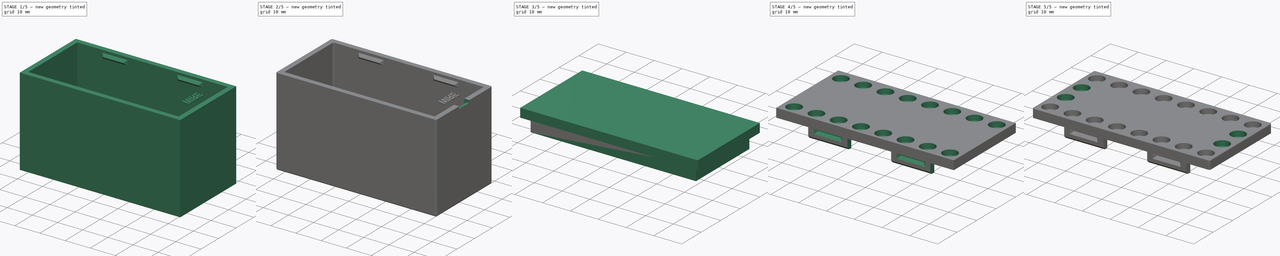
[diagram: build sequence overview — one tinted view per stage of 5, left to right]
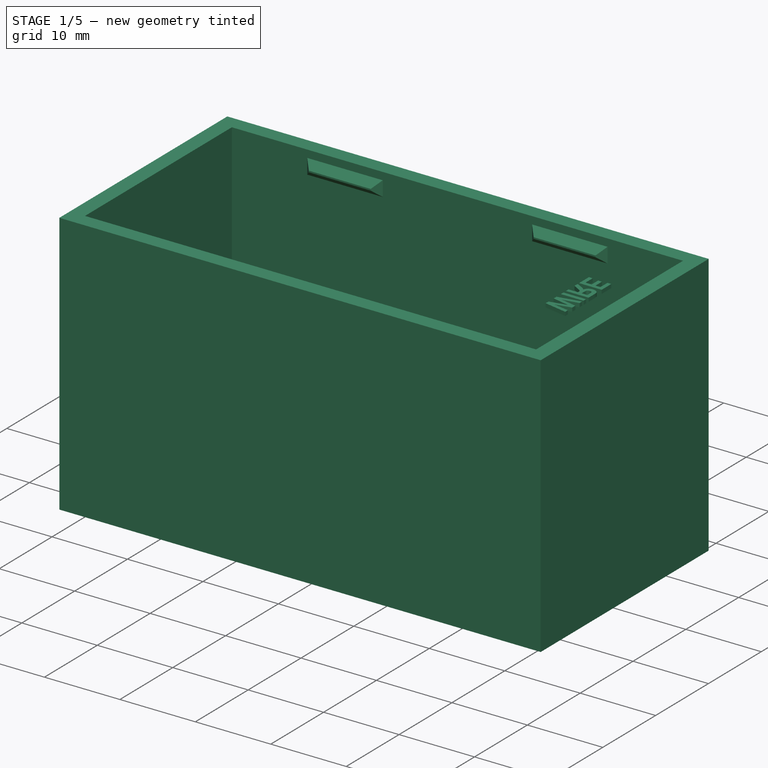
[diagram: stage 1 of 5 — iso view after this stage's code; geometry added in this stage tinted green]
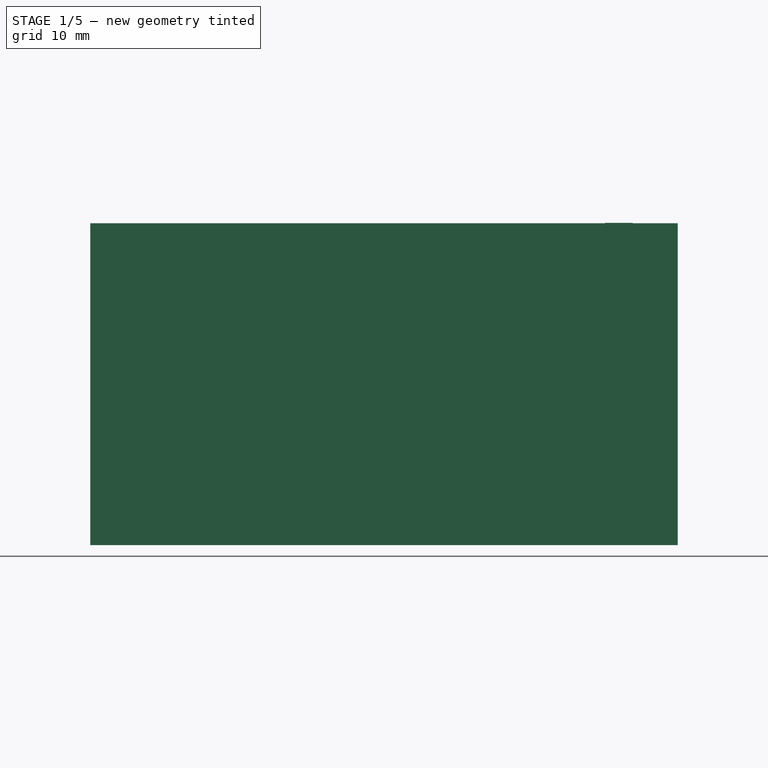
[diagram: stage 1 of 5 — front view after this stage's code; geometry added in this stage tinted green]
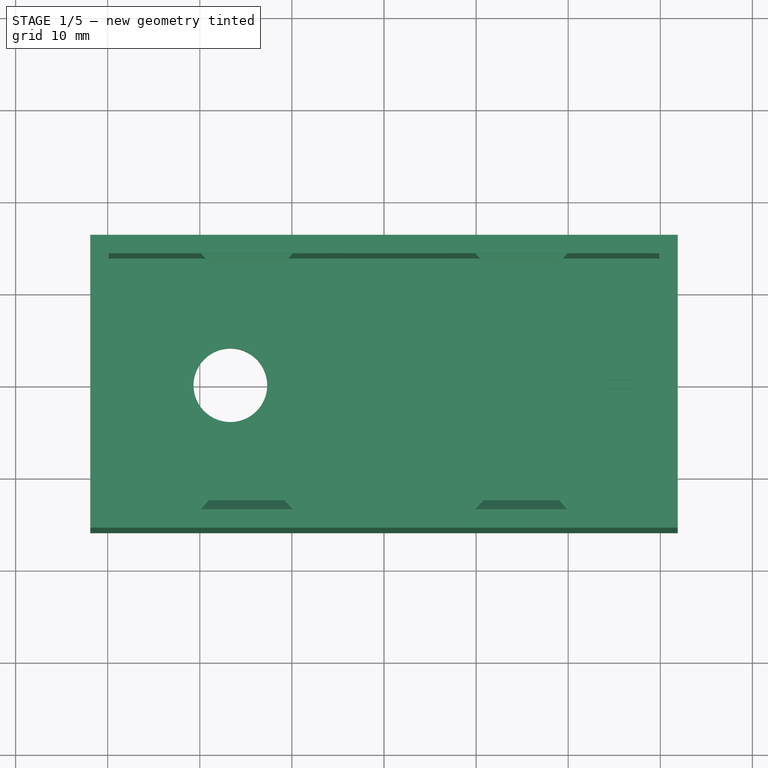
[diagram: stage 1 of 5 — top view after this stage's code; geometry added in this stage tinted green]
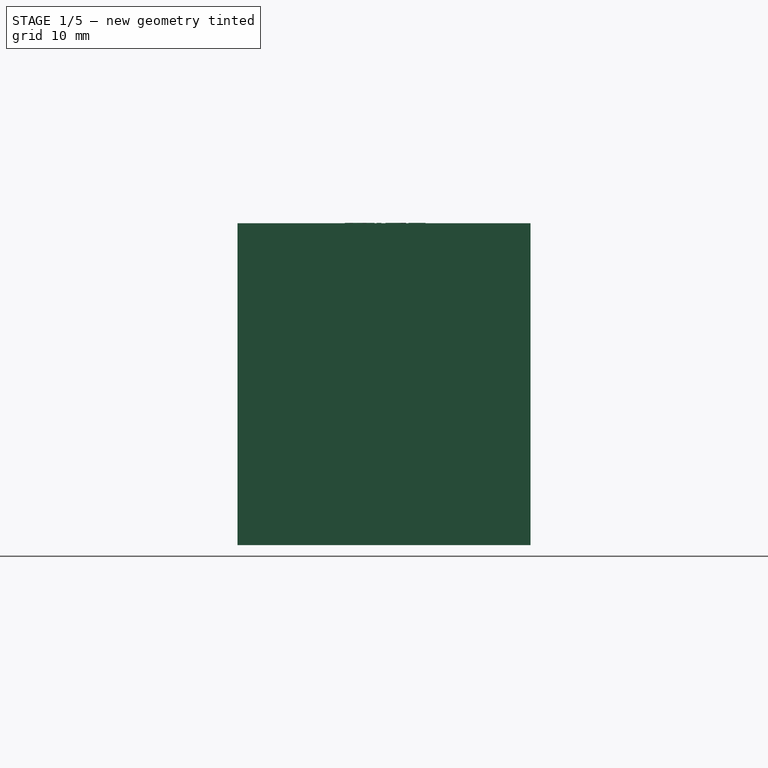
[diagram: stage 1 of 5 — right view after this stage's code; geometry added in this stage tinted green]
FCSTD DOCUMENT  (FreeCAD 1.0R39109 (Git))
Label: Enclosure for Lego PF PWM Motor control
License: All rights reserved
LicenseURL: https://en.wikipedia.org/wiki/All_rights_reserved
objects: Sketcher::SketchObject×13, Part::Feature×12, PartDesign::Pocket×8, PartDesign::Mirrored×7, PartDesign::Chamfer×6, PartDesign::Pad×4, PartDesign::SubShapeBinder×4, PartDesign::MultiTransform×4, PartDesign::Hole×2, PartDesign::LinearPattern×2, App::Part×2, PartDesign::Fillet×2, PartDesign::Body×2, Spreadsheet::Sheet×1, PartDesign::Thickness×1, Part::Scale×1, PartDesign::PolarPattern×1, Part::Part2DObjectPython×1, Part::Extrusion×1, Part::MultiFuse×1, +1 more types
note: 145 computed .brp shape members not serialized (recipe doc carries the construction recipe); baked Part::Feature solids carry a one-line shape summary decoded from their .brp

FEATURE [Spreadsheet::Sheet] Spreadsheet
  cells = A1='Basic Case; C1='Mounting Corners; E1='Flange; G1='LegoAdapter; A2='width; B2(width)==widthLegoAdapter; C2='standoff_height; D2(standoff_height)=6; E2='flange_length; F2(flange_length)=10; A3='length; B3(length)==lengthLegoAdapter; C3='standoff_outer_radius; D3(standoff_outer_radius)=3.5; E3='flange_thickness; F3(flange_thickness)=3; G3='lenghtUnits; H3(lenghtUnits)=8; A4='heightTotal; B4(heightTotal)==heightLegoAdapter; C4='offset_from_wall; D4(offset_from_wall)=4; G4='widthUnits; H4(widthUnits)=4; A5='wallCase; B5(wallCase)=2; C5='hole_diameter; D5(hole_diameter)=2.8; G5='heightUnits; H5(heightUnits)=12; A6='wallLid; B6(wallLid)==verticalSpacing; C6='Hole Spacing X; D6==length - 2 * wallCase - 2 * offset_from_wall; A7='gap; B7(gap)=0.2; C7='Hole Spacing Y; D7==width - 2 * wallCase - 2 * offset_from_wall; G7='lengthLegoAdapter; H7(lengthLegoAdapter)==lenghtUnits * horizontalSpacing - lenghtAdjustment; I7='calculated; A8='outsideFillet; B8=0.6; G8='widthLegoAdapter; H8(widthLegoAdapter)==widthUnits * horizontalSpacing - lenghtAdjustment; I8='calculated; A9='tolerance; B9(tolerance)=0.05; G9='heightLegoAdapter; H9(heightLegoAdapter)==heightUnits * verticalSpacing - lenghtAdjustment; I9='calculated; A10='snapfitToothLenght; B10(snapfitToothLenght)=10; G10='studPlacement; H10(studPlacement)=3.8; A11='snapfitToothHeight; B11(snapfitToothHeight)=2; G11='studDiameter; H11(studDiameter)=4.8; A12='SnapfitToothDepth; B12(SnapfitToothDepth)=1; G12='studHeight; H12(studHeight)=1.8; A13='chamferEdges; B13(chamferEdges)=0.2; G13='horizontalSpacing; H13(horizontalSpacing)=8; G14='verticalSpacing; H14(verticalSpacing)=3.2; A15='heightCase; B15(heightCase)==heightTotal - wallLid - tolerance; G15='lenghtAdjustment; H15(lenghtAdjustment)=0.2; A17='check smallest fillet (must be positive); B17==B8 - gap - wallCase - wallCase; G17='ClearanceLego; H17(ClearanceLego)=0.3; I17='for printing; G18='cornerFillet; H18(cornerFillet)=0.6; I18='for printing
FEATURE [Sketcher::SketchObject] Sketch  label="Sketch_case"
  ArcFitTolerance = 1e-06
  AttachmentSupport = -> [XY_Plane]
  FullyConstrained = true
  MakeInternals = false
  MapMode = 5
  expr: Constraints[27] = Spreadsheet.B8
  expr: Constraints[6] = Spreadsheet.length
  expr: Constraints[7] = Spreadsheet.width
  sketch-geometry (18):
    g0: LineSegment [constr] StartX=-31.9 StartY=15.3 StartZ=0 EndX=-31.9 EndY=-15.3 EndZ=0
    g1: LineSegment [constr] StartX=-31.3 StartY=-15.9 StartZ=0 EndX=31.3 EndY=-15.9 EndZ=0
    g2: LineSegment [constr] StartX=31.9 StartY=-15.3 StartZ=0 EndX=31.9 EndY=15.3 EndZ=0
    g3: LineSegment [constr] StartX=31.3 StartY=15.9 StartZ=0 EndX=-31.3 EndY=15.9 EndZ=0
    g4: GeomPoint [constr] X=0 Y=0 Z=0
    g5: ArcOfCircle [constr] CenterX=-31.3 CenterY=15.3 CenterZ=0 NormalX=0 NormalY=0 NormalZ=1 AngleXU=0 Radius=0.6 StartAngle=1.5708 EndAngle=3.14159
    g6: GeomPoint [constr] X=-31.9 Y=15.9 Z=0
    g7: ArcOfCircle [constr] CenterX=-31.3 CenterY=-15.3 CenterZ=0 NormalX=0 NormalY=0 NormalZ=1 AngleXU=0 Radius=0.6 StartAngle=3.14159 EndAngle=4.71239
    g8: GeomPoint [constr] X=-31.9 Y=-15.9 Z=0
    g9: ArcOfCircle [constr] CenterX=31.3 CenterY=-15.3 CenterZ=0 NormalX=0 NormalY=0 NormalZ=1 AngleXU=0 Radius=0.6 StartAngle=4.71239 EndAngle=6.28319
    g10: GeomPoint [constr] X=31.9 Y=-15.9 Z=0
    g11: ArcOfCircle [constr] CenterX=31.3 CenterY=15.3 CenterZ=0 NormalX=0 NormalY=0 NormalZ=1 AngleXU=0 Radius=0.6 StartAngle=8e-16 EndAngle=1.5708
    g12: GeomPoint [constr] X=31.9 Y=15.9 Z=0
    g13: LineSegment StartX=-31.9 StartY=15.9 StartZ=0 EndX=-31.9 EndY=-15.9 EndZ=0
    g14: LineSegment StartX=-31.9 StartY=-15.9 StartZ=0 EndX=31.9 EndY=-15.9 EndZ=0
    g15: LineSegment StartX=31.9 StartY=-15.9 StartZ=0 EndX=31.9 EndY=15.9 EndZ=0
    g16: LineSegment StartX=31.9 StartY=15.9 StartZ=0 EndX=-31.9 EndY=15.9 EndZ=0
    g17: GeomPoint [constr] X=0 Y=0 Z=0
  constraints (38):
    c: Vertical(g0)
    c: Vertical(g2)
    c: Horizontal(g1)
    c: Horizontal(g3)
    c: Symmetric(g10,g6,g4)
    c: Coincident(g4,g-1)
    c: DistanceX(g6,g12) = 63.8
    c: DistanceY(g8,g6) = 31.8
    c: PointOnObject(g6,g0)
    c: PointOnObject(g6,g3)
    c: Tangent(g0,g5) = -1.5708
    c: Tangent(g3,g5) = -1.5708
    c: PointOnObject(g8,g0)
    c: PointOnObject(g8,g1)
    c: Tangent(g0,g7) = -1.5708
    c: Tangent(g1,g7) = -1.5708
    c: PointOnObject(g10,g2)
    c: PointOnObject(g10,g1)
    c: Tangent(g2,g9) = -1.5708
    c: Tangent(g1,g9) = -1.5708
    c: PointOnObject(g12,g3)
    c: PointOnObject(g12,g2)
    c: Tangent(g3,g11) = -1.5708
    c: Tangent(g2,g11) = -1.5708
    c: Equal(g11,g5)
    c: Equal(g5,g9)
    c: Equal(g9,g7)
    c: Radius(g5) = 0.6
    c: Coincident(g13,g14)
    c: Coincident(g14,g15)
    c: Coincident(g15,g16)
    c: Coincident(g16,g13)
    c: Vertical(g15)
    c: Horizontal(g14)
    c: Symmetric(g15,g13,g17)
    c: Coincident(g17,g4)
    c: Tangent(g16,g3)
    c: Tangent(g0,g13)
FEATURE [PartDesign::Pad] Pad  label="Pad_case"
  Direction = (0,0,1)
  Length = 34.95
  Length2 = 10
  Profile = -> Sketch
  ReferenceAxis = -> Sketch [N_Axis]
  Refine = true
  Suppressed = false
  Type = 0
  expr: Length = Spreadsheet.heightCase
FEATURE [PartDesign::Thickness] Thickness  label="Thickness_case"
  Base = -> Pad [Face6]
  BaseFeature = -> Pad
  Intersection = false
  Join = 0
  Mode = 0
  Refine = true
  Reversed = true
  SupportTransform = false
  Suppressed = false
  Value = 2
  expr: Value = Spreadsheet.wallCase
FEATURE [Sketcher::SketchObject] Sketch002  label="Sketch_snapfitTooth1"
  ArcFitTolerance = 1e-06
  AttachmentSupport = -> [Thickness]
  ExternalGeometry = -> [Thickness]
  FullyConstrained = true
  MakeInternals = false
  MapMode = 5
  Placement = pos=(-4e-16,13.9,0) rot=(1,0,0;1.5708rad)
  expr: Constraints[10] = Spreadsheet.snapfitToothHeight
  expr: Constraints[9] = Spreadsheet.snapfitToothLenght
  sketch-geometry (5):
    g0: LineSegment StartX=-19.9 StartY=33.95 StartZ=0 EndX=-19.9 EndY=31.95 EndZ=0
    g1: LineSegment StartX=-19.9 StartY=31.95 StartZ=0 EndX=-9.9 EndY=31.95 EndZ=0
    g2: LineSegment StartX=-9.9 StartY=31.95 StartZ=0 EndX=-9.9 EndY=33.95 EndZ=0
    g3: LineSegment StartX=-9.9 StartY=33.95 StartZ=0 EndX=-19.9 EndY=33.95 EndZ=0
    g4: GeomPoint [constr] X=-14.9 Y=32.95 Z=0
  constraints (13):
    c: Coincident(g0,g1)
    c: Coincident(g1,g2)
    c: Coincident(g2,g3)
    c: Coincident(g3,g0)
    c: Vertical(g0)
    c: Vertical(g2)
    c: Horizontal(g1)
    c: Horizontal(g3)
    c: Symmetric(g2,g0,g4)
    c: DistanceX(g3,g3) = 10
    c: DistanceY(g0,g0) = 2
    c: DistanceX(g-4,g0) = 10
    c: DistanceY(g0,g-4) = 1
FEATURE [PartDesign::Pad] Pad003  label="Pad_snapfitTooth1"
  BaseFeature = -> Thickness
  Direction = (0,-1,2e-16)
  Length = 1
  Length2 = 10
  Profile = -> Sketch002
  ReferenceAxis = -> Sketch002 [N_Axis]
  Refine = true
  Suppressed = false
  TaperAngle = -42
  Type = 0
  expr: Length = Spreadsheet.SnapfitToothDepth
FEATURE [PartDesign::Mirrored] Mirrored
  MirrorPlane = -> YZ_Plane
  Refine = true
  Suppressed = false
  TransformMode = 0
FEATURE [PartDesign::Mirrored] Mirrored001
  MirrorPlane = -> XZ_Plane
  Refine = true
  Suppressed = false
  TransformMode = 0
FEATURE [PartDesign::MultiTransform] MultiTransform  label="MultiTransform_snapfitTeeth"
  BaseFeature = -> Pad003
  Originals = -> [Pad003]
  Refine = true
  Suppressed = false
  TransformMode = 0
  Transformations = -> [Mirrored,Mirrored001]
FEATURE [Part::Feature] Part__Feature  label="Body"
  shape: bbox 26.5 x 31 x 2.5 mm, 65 faces (baked)
FEATURE [Part::Feature] Part__Feature001  label="POTENCIOMETRO_CAJA"
  shape: bbox 12.6 x 9.5 x 11.4 mm, 6 faces (baked)
FEATURE [Part::Feature] Part__Feature002  label="EJE"
  shape: bbox 15.5 x 6.6 x 6.6 mm, 3 faces (baked)
FEATURE [Part::Feature] Part__Feature003  label="potenciometro"
  Placement = pos=(0,0,9) rot=(0,0,1;0rad)
  shape: bbox 17.25 x 15.88 x 15.88 mm, 7 faces (baked)
FEATURE [Part::Feature] Part__Feature004  label="condensador"
  Placement = pos=(0,-10,-22) rot=(0,0,1;1.5708rad)
  shape: bbox 16 x 10.82 x 10.82 mm, 5 faces (baked)
FEATURE [Part::Feature] Part__Feature005  label="Body005"
  shape: bbox 7.7 x 21 x 10 mm, 53 faces (baked)
FEATURE [Part::Feature] Part__Feature006  label="PIN"
  Placement = pos=(-19.1,-8,3.3) rot=(0,0,1;3.14159rad)
  shape: bbox 5.892 x 0.67 x 9.613 mm, 10 faces (baked)
FEATURE [Part::Feature] Part__Feature007  label="PIN001"
  Placement = pos=(-19.1,-12.4,3.3) rot=(0,0,1;3.14159rad)
  shape: bbox 5.892 x 0.67 x 9.613 mm, 10 faces (baked)
FEATURE [App::Part] Grupo  label="PWM Speed Controller"
  Group = -> [Part__Feature,Part__Feature001,Part__Feature002,Part__Feature003,Part__Feature004,Part__Feature005,Part__Feature006,Part__Feature007]
  Origin = -> Origin002
  Placement = pos=(-13,-9,18.5) rot=(-0.58,0.58,0.58;2.0944rad)
FEATURE [Part::Feature] Part__Feature008  label="main-casing"
  shape: bbox 37 x 28 x 29 mm, 170 faces (baked)
FEATURE [Part::Feature] Part__Feature009  label="rocker-switch"
  Placement = pos=(-0.426771,0,-2.76173) rot=(0,-1,0;0.200713rad)
  shape: bbox 26.3 x 19.5 x 13.38 mm, 27 faces (baked)
FEATURE [Part::Feature] Part__Feature010  label="rocker-pivot"
  shape: bbox 3 x 22 x 3 mm, 3 faces (baked)
FEATURE [Part::Feature] Part__Feature011  label="connectors"
  shape: bbox 23 x 19.9 x 15 mm, 82 faces (baked)
FEATURE [App::Part] Rocker_Switch_v27  label="Rocker Switch v27"
  Group = -> [Part__Feature008,Part__Feature009,Part__Feature010,Part__Feature011]
  Origin = -> Origin003
FEATURE [Part::Scale] Scale  label="Scale_switch"
  Base = -> Rocker_Switch_v27
  Placement = pos=(25,-10.5,-2) rot=(0,1,0;3.14159rad)
  Uniform = false
  UniformScale = 1
  XScale = 0.94
  YScale = 0.96
  ZScale = 1
FEATURE [PartDesign::SubShapeBinder] Binder002  label="Binder_footprint_potAxis"
  BindCopyOnChange = 0
  BindMode = 0
  ClaimChildren = false
  Context = -> Body [Binder002.]
  Fuse = false
  MakeFace = true
  OffsetFill = false
  OffsetIntersection = false
  OffsetJoinType = 0
  OffsetOpenResult = false
  PartialLoad = false
  Refine = true
  Relative = true
  Support = -> [Grupo[Part__Feature002.Edge3]]
  _Version = 2
FEATURE [Sketcher::SketchObject] Sketch007  label="Sketch_holePotAxis"
  ArcFitTolerance = 1e-06
  AttachmentSupport = -> [MultiTransform]
  ExternalGeometry = -> [Binder002]
  FullyConstrained = true
  MakeInternals = false
  MapMode = 5
  Placement = pos=(0,0,0) rot=(1,0,0;3.14159rad)
  sketch-geometry (1):
    g0: Circle CenterX=-16.6834 CenterY=-0.143796 CenterZ=0 NormalX=0 NormalY=0 NormalZ=1 AngleXU=0 Radius=4
  constraints (2):
    c: Coincident(g0,g-3)
    c: Diameter(g0) = 8
FEATURE [PartDesign::Pocket] Pocket002  label="Pocket_holePotAxis"
  BaseFeature = -> MultiTransform
  Direction = (0,0,1)
  Length = 0
  Length2 = 5
  Profile = -> Sketch007
  ReferenceAxis = -> Sketch007 [N_Axis]
  Refine = true
  Suppressed = false
  Type = 3
  UpToFace = -> MultiTransform [Face11]
FEATURE [PartDesign::Body] Body  label="Body_case"
  AllowCompound = false
  Group = -> [Sketch,Pad,Thickness,Sketch002,Pad003,MultiTransform,Mirrored,Mirrored001,Binder002,Sketch007,Pocket002,Binder003,Sketch008,Pocket003,Fillet,Chamfer003,Chamfer002,Sketch009,Pocket004,Chamfer005,Sketch010,Pocket005,PolarPattern,Sketch011,Pocket006,Mirrored006,Sketch012,Pocket007]
  Origin = -> Origin
  Tip = -> Pocket007
FEATURE [Part::Part2DObjectPython] ShapeString  label="ShapeString_txtWire"  # Draft 2D object (typed FeaturePython)
  FontFile = <path>
  Fuse = false
  Justification = 6
  JustificationReference = 0
  KeepLeftMargin = false
  MakeFace = true
  ObliqueAngle = 0
  Placement = pos=(24,-4.26,35) rot=(0.707107,0.707107,0;3.14159rad)
  ScaleToSize = true
  Size = 3
  String = WIRE
  Tracking = 0
FEATURE [Part::Extrusion] Extrude  label="Extrude_txtWire"
  Base = -> ShapeString
  Dir = (0,0,-1)
  DirMode = 2
  FaceMakerClass = Part::FaceMakerBullseye
  FaceMakerMode = 3
  LengthFwd = 0.5
  LengthRev = 0
  Solid = false
  Symmetric = false
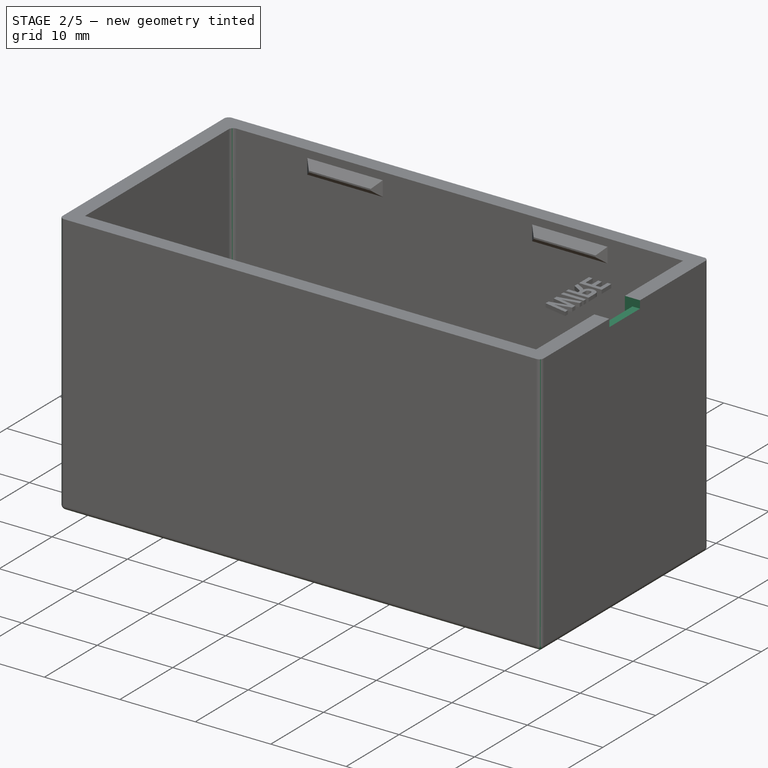
[diagram: stage 2 of 5 — iso view after this stage's code; geometry added in this stage tinted green]
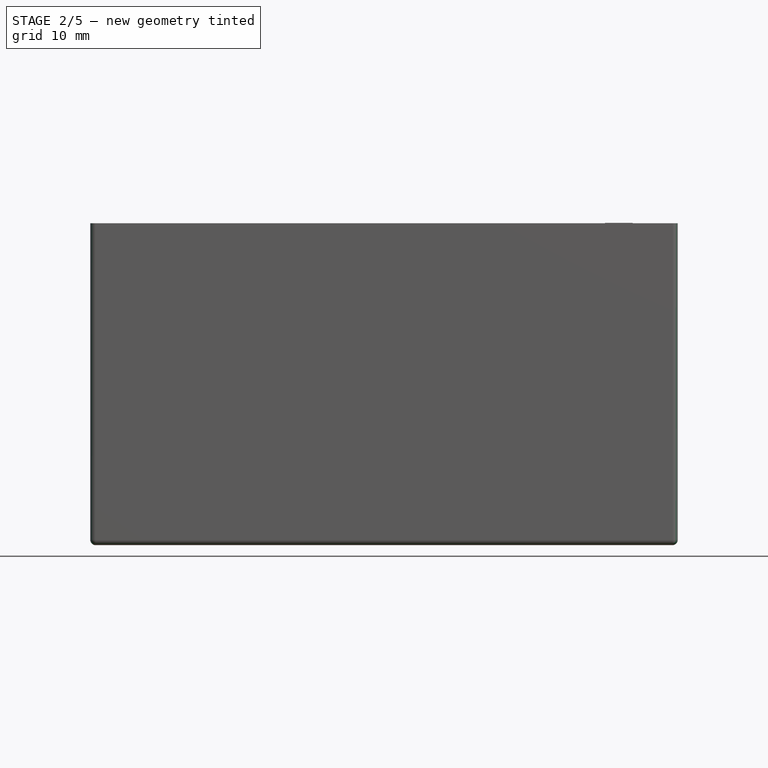
[diagram: stage 2 of 5 — front view after this stage's code; geometry added in this stage tinted green]
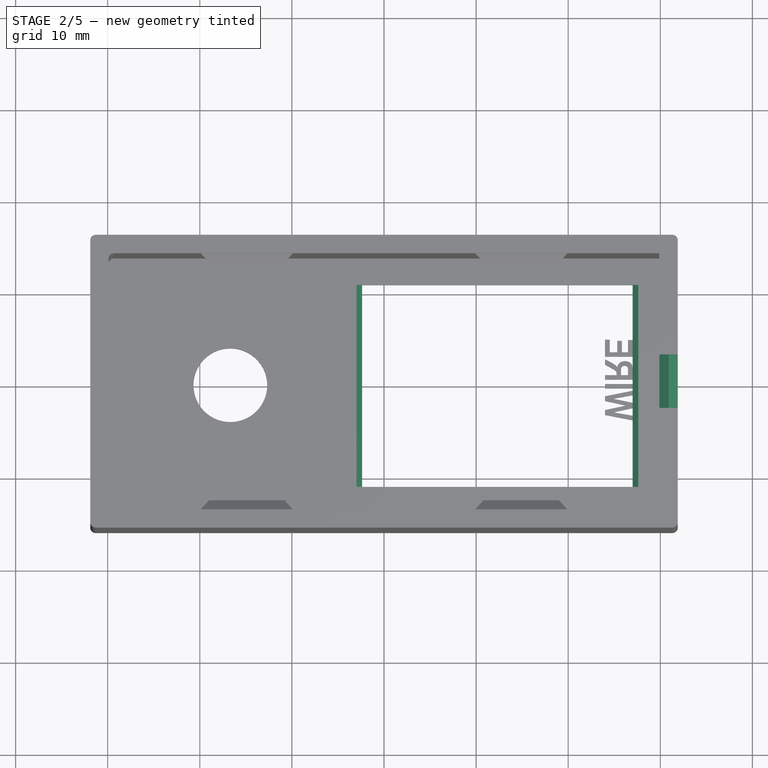
[diagram: stage 2 of 5 — top view after this stage's code; geometry added in this stage tinted green]
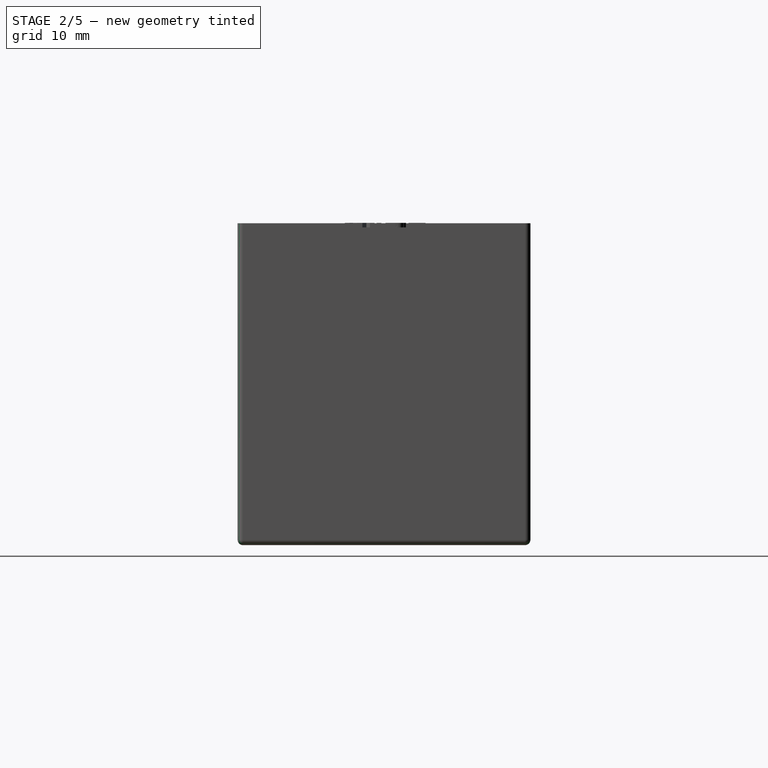
[diagram: stage 2 of 5 — right view after this stage's code; geometry added in this stage tinted green]
FEATURE [PartDesign::SubShapeBinder] Binder003  label="Binder_footprintSwitch"
  BindCopyOnChange = 0
  BindMode = 0
  ClaimChildren = false
  Context = -> Body [Binder003.]
  Fuse = false
  MakeFace = true
  OffsetFill = false
  OffsetIntersection = false
  OffsetJoinType = 0
  OffsetOpenResult = false
  PartialLoad = false
  Refine = true
  Relative = true
  Support = -> [Scale[Edge39,Edge40,Edge41,Edge42,Edge37,Edge38]]
  _Version = 2
FEATURE [Sketcher::SketchObject] Sketch008  label="Sketch_holeSwitch"
  ArcFitTolerance = 1e-06
  AttachmentSupport = -> [Pocket002]
  ExternalGeometry = -> [Binder003]
  FullyConstrained = true
  MakeInternals = false
  MapMode = 5
  Placement = pos=(0,0,0) rot=(1,0,0;3.14159rad)
  sketch-geometry (8):
    g0: LineSegment [constr] StartX=25 StartY=10.5 StartZ=0 EndX=-0.38 EndY=-10.62 EndZ=0
    g1: LineSegment [constr] StartX=-0.38 StartY=10.5 StartZ=0 EndX=25 EndY=-10.62 EndZ=0
    g2: GeomPoint [constr] X=12.31 Y=-0.06 Z=0
    g3: LineSegment StartX=-2.38 StartY=10.9 StartZ=0 EndX=-2.38 EndY=-11.02 EndZ=0
    g4: LineSegment StartX=-2.38 StartY=-11.02 StartZ=0 EndX=27 EndY=-11.02 EndZ=0
    g5: LineSegment StartX=27 StartY=-11.02 StartZ=0 EndX=27 EndY=10.9 EndZ=0
    g6: LineSegment StartX=27 StartY=10.9 StartZ=0 EndX=-2.38 EndY=10.9 EndZ=0
    g7: GeomPoint [constr] X=12.31 Y=-0.06 Z=0
  constraints (18):
    c: Coincident(g0,g-6)
    c: Coincident(g0,g-8)
    c: Coincident(g1,g-4)
    c: Coincident(g1,g-7)
    c: PointOnObject(g2,g0)
    c: PointOnObject(g2,g1)
    c: Coincident(g3,g4)
    c: Coincident(g4,g5)
    c: Coincident(g5,g6)
    c: Coincident(g6,g3)
    c: Vertical(g3)
    c: Vertical(g5)
    c: Horizontal(g4)
    c: Horizontal(g6)
    c: Symmetric(g5,g3,g7)
    c: Coincident(g7,g2)
    c: DistanceX(g3,g1) = 2
    c: DistanceY(g1,g3) = 0.4
FEATURE [PartDesign::Pocket] Pocket003  label="Pocket_holeSwitch"
  BaseFeature = -> Pocket002
  Direction = (0,0,1)
  Length = 0
  Length2 = 5
  Profile = -> Sketch008
  ReferenceAxis = -> Sketch008 [N_Axis]
  Refine = true
  Suppressed = false
  Type = 3
  UpToFace = -> Pocket002 [Face12]
FEATURE [PartDesign::Fillet] Fillet  label="Fillet_caseCorners"
  Base = -> Pocket003 [Edge9,Edge11,Edge6,Edge3,Edge34,Edge2,Edge8,Edge5,Edge1]
  BaseFeature = -> Pocket003
  Radius = 0.6
  Refine = true
  SupportTransform = false
  Suppressed = false
  UseAllEdges = false
  expr: Radius = Spreadsheet.cornerFillet
FEATURE [PartDesign::Chamfer] Chamfer003  label="Chamfer_caseSwitchEdge"
  Angle = 45
  Base = -> Fillet [Edge70,Edge68,Edge79,Edge81]
  BaseFeature = -> Fillet
  ChamferType = 0
  FlipDirection = false
  Refine = true
  Size = 0.6
  Size2 = 1
  SupportTransform = false
  Suppressed = false
  UseAllEdges = false
FEATURE [PartDesign::Chamfer] Chamfer002  label="Chamfer_caseHolesBottom"
  Angle = 45
  Base = -> Chamfer003 [Edge2,Edge7,Edge13]
  BaseFeature = -> Chamfer003
  ChamferType = 0
  FlipDirection = false
  Refine = true
  Size = 0.2
  Size2 = 1
  SupportTransform = false
  Suppressed = false
  UseAllEdges = false
  expr: Size = Spreadsheet.chamferEdges
FEATURE [Sketcher::SketchObject] Sketch009
  ArcFitTolerance = 1e-06
  AttachmentSupport = -> [Chamfer002]
  ExternalGeometry = -> [Chamfer002]
  FullyConstrained = true
  MakeInternals = false
  MapMode = 5
  Placement = pos=(0,0,34.95) rot=(0,0,1;0rad)
  sketch-geometry (12):
    g0: LineSegment [constr] StartX=29.9 StartY=13.9 StartZ=0 EndX=29.9 EndY=-13.9 EndZ=0
    g1: LineSegment [constr] StartX=29.9 StartY=-13.9 StartZ=0 EndX=31.9 EndY=-13.9 EndZ=0
    g2: LineSegment [constr] StartX=31.9 StartY=-13.9 StartZ=0 EndX=31.9 EndY=13.9 EndZ=0
    g3: LineSegment [constr] StartX=31.9 StartY=13.9 StartZ=0 EndX=29.9 EndY=13.9 EndZ=0
    g4: LineSegment [constr] StartX=31.9 StartY=13.9 StartZ=0 EndX=29.9 EndY=-13.9 EndZ=0
    g5: LineSegment [constr] StartX=29.9 StartY=13.9 StartZ=0 EndX=31.9 EndY=-13.9 EndZ=0
    g6: GeomPoint [constr] X=30.9 Y=-8e-15 Z=0
    g7: LineSegment StartX=29.9 StartY=2.9 StartZ=0 EndX=29.9 EndY=-2.9 EndZ=0
    g8: LineSegment StartX=29.9 StartY=-2.9 StartZ=0 EndX=31.9 EndY=-2.9 EndZ=0
    g9: LineSegment StartX=31.9 StartY=-2.9 StartZ=0 EndX=31.9 EndY=2.9 EndZ=0
    g10: LineSegment StartX=31.9 StartY=2.9 StartZ=0 EndX=29.9 EndY=2.9 EndZ=0
    g11: GeomPoint [constr] X=30.9 Y=-8e-15 Z=0
  constraints (26):
    c: Coincident(g0,g1)
    c: Coincident(g1,g2)
    c: Coincident(g2,g3)
    c: Coincident(g3,g0)
    c: Horizontal(g1)
    c: Horizontal(g3)
    c: Coincident(g0,g-3)
    c: Tangent(g2,g-4)
    c: Coincident(g4,g2)
    c: Coincident(g4,g0)
    c: Coincident(g5,g0)
    c: Coincident(g5,g1)
    c: PointOnObject(g6,g4)
    c: Coincident(g0,g-3)
    c: PointOnObject(g6,g5)
    c: Coincident(g7,g8)
    c: Coincident(g8,g9)
    c: Coincident(g9,g10)
    c: Coincident(g10,g7)
    c: Vertical(g7)
    c: Horizontal(g8)
    c: Horizontal(g10)
    c: Symmetric(g9,g7,g11)
    c: Coincident(g11,g6)
    c: Tangent(g9,g2)
    c: DistanceY(g8,g9) = 5.8
FEATURE [PartDesign::Pocket] Pocket004  label="Pocket_wireHole"
  BaseFeature = -> Chamfer002
  Direction = (0,0,-1)
  Length = 1
  Length2 = 5
  Profile = -> Sketch009
  ReferenceAxis = -> Sketch009 [N_Axis]
  Refine = true
  Suppressed = false
  Type = 0
FEATURE [PartDesign::Body] Body001  label="Body_lid"
  AllowCompound = false
  Group = -> [Binder,Sketch001,Pad001,Pad002,Binder001,Sketch003,Pocket,MultiTransform001,Mirrored002,Mirrored003,Sketch004,Pocket001,Chamfer,Sketch005,Hole,MultiTransform002,LinearPattern,LinearPattern001,Sketch006,Hole001,MultiTransform003,Mirrored004,Mirrored005,Fillet001,Chamfer001,Chamfer004]
  Origin = -> Origin001
  Tip = -> Chamfer004
FEATURE [PartDesign::Chamfer] Chamfer005  label="Chamfer_caseWireHole"
  Angle = 45
  Base = -> Pocket004 [Edge95]
  BaseFeature = -> Pocket004
  ChamferType = 0
  FlipDirection = false
  Refine = true
  Size = 1
  Size2 = 1
  SupportTransform = false
  Suppressed = false
  UseAllEdges = false
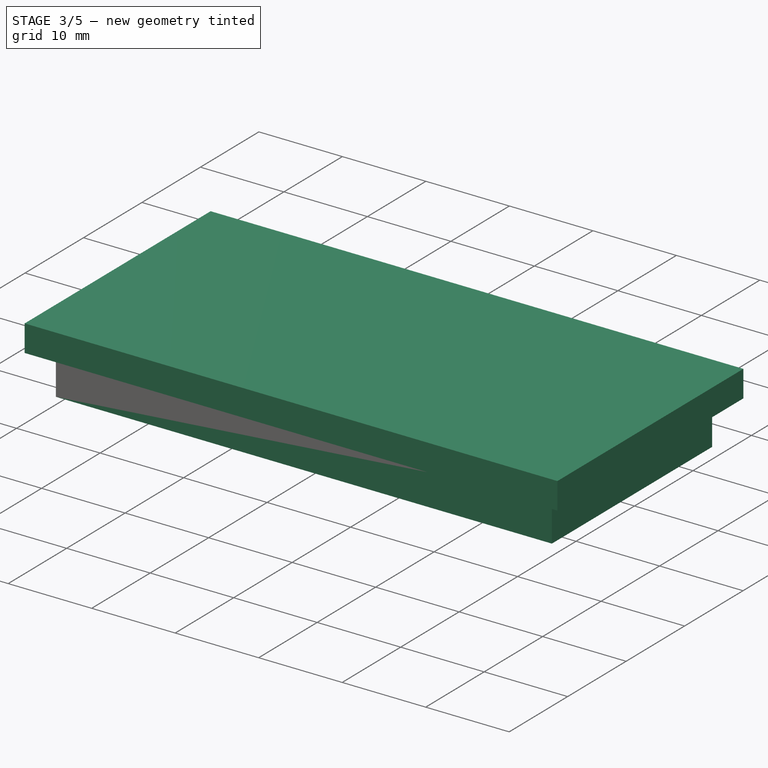
[diagram: stage 3 of 5 — iso view after this stage's code; geometry added in this stage tinted green]
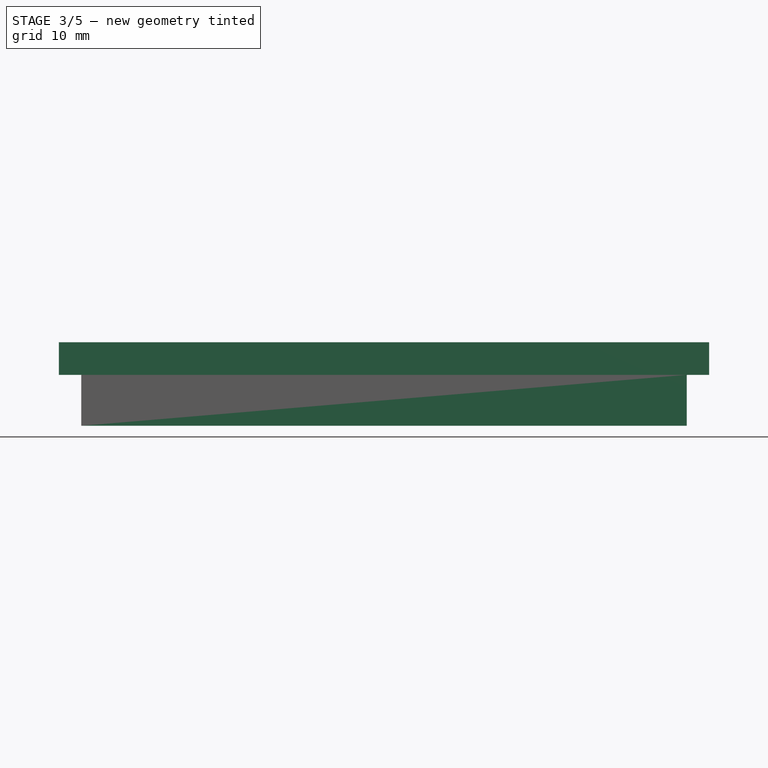
[diagram: stage 3 of 5 — front view after this stage's code; geometry added in this stage tinted green]
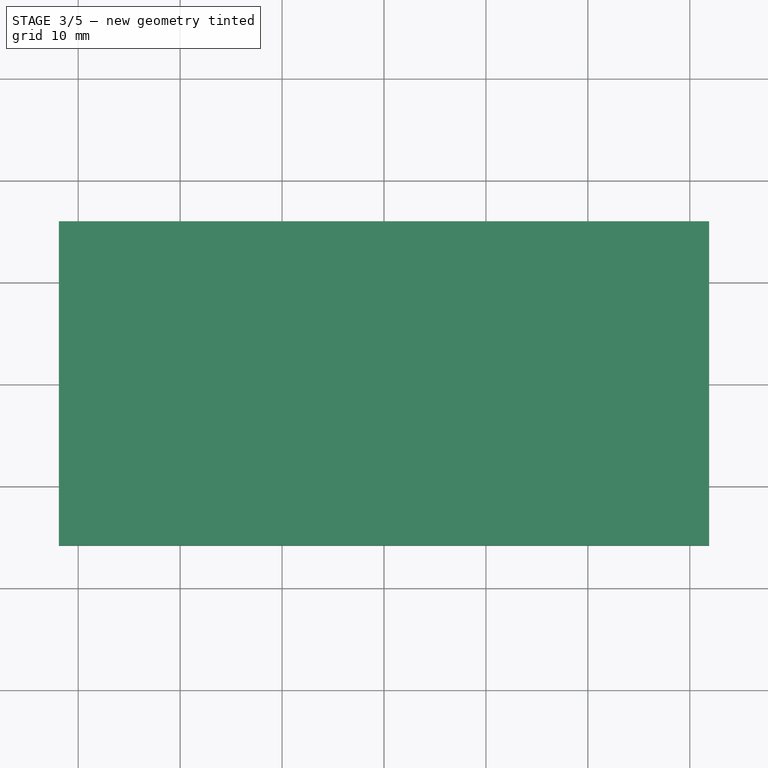
[diagram: stage 3 of 5 — top view after this stage's code; geometry added in this stage tinted green]
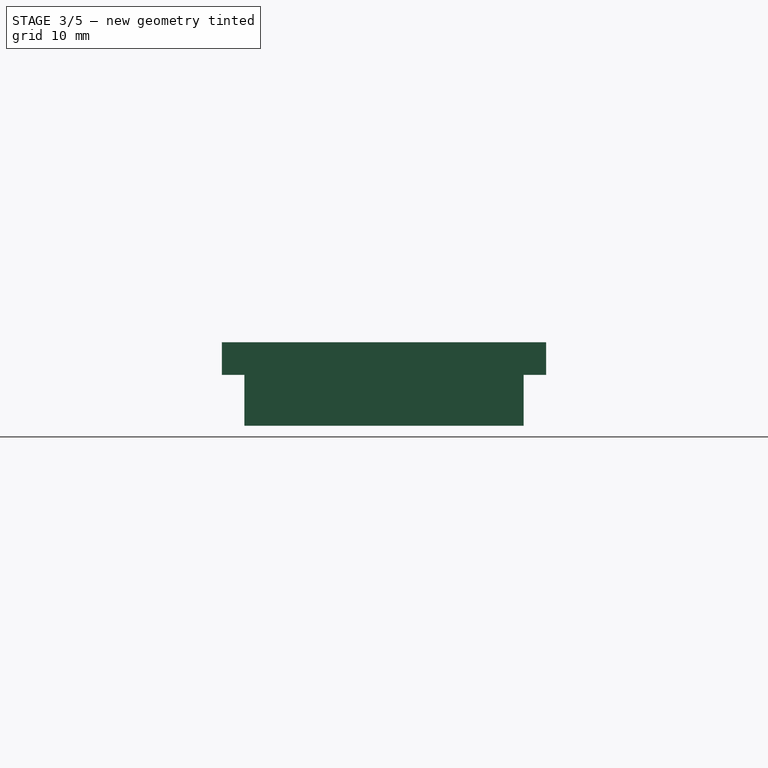
[diagram: stage 3 of 5 — right view after this stage's code; geometry added in this stage tinted green]
FEATURE [PartDesign::SubShapeBinder] Binder  label="Binder_footprintSketch_case"
  BindCopyOnChange = 0
  BindMode = 0
  ClaimChildren = false
  Context = -> Body001 [Binder.]
  Fuse = false
  MakeFace = true
  OffsetFill = false
  OffsetIntersection = false
  OffsetJoinType = 0
  OffsetOpenResult = false
  PartialLoad = false
  Refine = true
  Relative = true
  Support = -> [Body[Sketch.]]
  _Version = 2
FEATURE [Sketcher::SketchObject] Sketch001  label="Sketch_lid"
  ArcFitTolerance = 1e-06
  AttachmentOffset = pos=(0,0,38.2) rot=(0,0,1;0rad)
  AttachmentSupport = -> [XY_Plane001]
  ExternalGeometry = -> [Binder]
  FullyConstrained = true
  MakeInternals = false
  MapMode = 5
  Placement = pos=(0,0,38.2) rot=(0,0,1;0rad)
  expr: .AttachmentOffset.Base.z = Spreadsheet.heightTotal
  expr: Constraints[32] = Spreadsheet.wallCase + Spreadsheet.gap
  expr: Constraints[33] = Spreadsheet.wallCase + Spreadsheet.gap
  expr: Constraints[34] = Spreadsheet.wallCase
  expr: Constraints[35] = Spreadsheet.wallCase
  sketch-geometry (16):
    g0: GeomPoint [constr] X=0 Y=0 Z=0
    g1: LineSegment StartX=-31.9 StartY=15.9 StartZ=0 EndX=-31.9 EndY=-15.9 EndZ=0
    g2: LineSegment StartX=-31.9 StartY=-15.9 StartZ=0 EndX=31.9 EndY=-15.9 EndZ=0
    g3: LineSegment StartX=31.9 StartY=-15.9 StartZ=0 EndX=31.9 EndY=15.9 EndZ=0
    g4: LineSegment StartX=31.9 StartY=15.9 StartZ=0 EndX=-31.9 EndY=15.9 EndZ=0
    g5: GeomPoint [constr] X=0 Y=0 Z=0
    g6: LineSegment StartX=-29.7 StartY=13.7 StartZ=0 EndX=-29.7 EndY=-13.7 EndZ=0
    g7: LineSegment StartX=-29.7 StartY=-13.7 StartZ=0 EndX=29.7 EndY=-13.7 EndZ=0
    g8: LineSegment StartX=29.7 StartY=-13.7 StartZ=0 EndX=29.7 EndY=13.7 EndZ=0
    g9: LineSegment StartX=29.7 StartY=13.7 StartZ=0 EndX=-29.7 EndY=13.7 EndZ=0
    g10: GeomPoint [constr] X=0 Y=0 Z=0
    g11: LineSegment StartX=-27.7 StartY=11.7 StartZ=0 EndX=-27.7 EndY=-11.7 EndZ=0
    g12: LineSegment StartX=-27.7 StartY=-11.7 StartZ=0 EndX=27.7 EndY=-11.7 EndZ=0
    g13: LineSegment StartX=27.7 StartY=-11.7 StartZ=0 EndX=27.7 EndY=11.7 EndZ=0
    g14: LineSegment StartX=27.7 StartY=11.7 StartZ=0 EndX=-27.7 EndY=11.7 EndZ=0
    g15: GeomPoint [constr] X=0 Y=0 Z=0
  constraints (36):
    c: Coincident(g0,g-1)
    c: Coincident(g1,g2)
    c: Coincident(g2,g3)
    c: Coincident(g3,g4)
    c: Coincident(g4,g1)
    c: Vertical(g1)
    c: Vertical(g3)
    c: Horizontal(g2)
    c: Horizontal(g4)
    c: Symmetric(g3,g1,g5)
    c: Coincident(g5,g0)
    c: Coincident(g6,g7)
    c: Coincident(g7,g8)
    c: Coincident(g8,g9)
    c: Coincident(g9,g6)
    c: Vertical(g6)
    c: Vertical(g8)
    c: Horizontal(g7)
    c: Horizontal(g9)
    c: Symmetric(g8,g6,g10)
    c: Coincident(g10,g0)
    c: Coincident(g11,g12)
    c: Coincident(g12,g13)
    c: Coincident(g13,g14)
    c: Coincident(g14,g11)
    c: Vertical(g11)
    c: Vertical(g13)
    c: Horizontal(g12)
    c: Horizontal(g14)
    c: Symmetric(g13,g11,g15)
    c: Coincident(g15,g0)
    c: Coincident(g1,g-4)
    c: DistanceX(g1,g6) = 2.2
    c: DistanceY(g6,g1) = 2.2
    c: DistanceX(g6,g11) = 2
    c: DistanceY(g11,g6) = 2
FEATURE [PartDesign::Pad] Pad001  label="Pad_lid"
  Direction = (0,0,1)
  Length = 3.2
  Length2 = 10
  Profile = -> Sketch001 [Edge1,Edge4,Edge2,Edge3]
  ReferenceAxis = -> Sketch001 [N_Axis]
  Refine = true
  Reversed = true
  Suppressed = false
  Type = 0
  expr: Length = Spreadsheet.wallLid
FEATURE [PartDesign::Pad] Pad002  label="Pad_lidWall"
  BaseFeature = -> Pad001
  Direction = (0,0,1)
  Length = 8.2
  Length2 = 10
  Profile = -> Sketch001 [Edge11,Edge7,Edge6,Edge10,Edge12,Edge8,Edge9,Edge5]
  ReferenceAxis = -> Sketch001 [N_Axis]
  Refine = true
  Reversed = true
  Suppressed = false
  Type = 0
  expr: Length = Spreadsheet.wallLid + 5
FEATURE [Sketcher::SketchObject] Sketch010  label="Sketch_potmeterscale"
  ArcFitTolerance = 1e-06
  AttachmentSupport = -> [Chamfer005]
  ExternalGeometry = -> [Chamfer005]
  FullyConstrained = false
  MakeInternals = false
  MapMode = 5
  Placement = pos=(0,0,0) rot=(1,0,0;3.14159rad)
  sketch-geometry (7):
    g0: Circle [constr] CenterX=-16.6834 CenterY=-0.143796 CenterZ=0 NormalX=0 NormalY=0 NormalZ=1 AngleXU=0 Radius=10
    g1: LineSegment [constr] StartX=-16.6834 StartY=-0.143796 StartZ=0 EndX=-23.7544 EndY=-7.21487 EndZ=0
    g2: LineSegment StartX=-23.3174 StartY=-7.62639 StartZ=0 EndX=-24.7316 EndY=-9.04061 EndZ=0
    g3: LineSegment StartX=-24.7316 StartY=-9.04061 StartZ=0 EndX=-25.5802 EndY=-8.19208 EndZ=0
    g4: LineSegment StartX=-25.5802 StartY=-8.19208 StartZ=0 EndX=-24.166 EndY=-6.77786 EndZ=0
    g5: LineSegment StartX=-24.166 StartY=-6.77786 StartZ=0 EndX=-23.3174 EndY=-7.62639 EndZ=0
    g6: GeomPoint X=-23.7417 Y=-7.20213 Z=0
  constraints (19):
    c: Coincident(g0,g-3)
    c: Diameter(g0) = 20
    c: Angle(g-1,g1) = -2.35619
    c: Coincident(g1,g0)
    c: PointOnObject(g1,g0)
    c: PointOnObject(g2,g0)
    c: Coincident(g2,g3)
    c: Coincident(g3,g4)
    c: PointOnObject(g4,g0)
    c: Coincident(g4,g5)
    c: Coincident(g5,g2)
    c: Parallel(g1,g4)
    c: Parallel(g1,g2)
    c: Parallel(g5,g3)
    c: Distance(g4,g2) = 1.2  'scaleWith'
    c: Distance(g4,g3) = 2
    c: PointOnObject(g6,g5)
    c: Distance(g6,g4) = 0.6
    c: PointOnObject(g6,g1)
FEATURE [PartDesign::Pocket] Pocket005  label="Pocket_potmeterscale"
  BaseFeature = -> Chamfer005
  Direction = (0,0,1)
  Length = 0.4
  Length2 = 5
  Profile = -> Sketch010
  ReferenceAxis = -> Sketch010 [N_Axis]
  Refine = true
  Suppressed = false
  TaperAngle = -45
  Type = 0
  expr: TaperAngle = -45
FEATURE [PartDesign::PolarPattern] PolarPattern  label="PolarPattern_potmeterscale"
  Angle = 270
  Axis = -> Pocket005 [Edge86]
  BaseFeature = -> Pocket005
  Mode = 0
  Occurrences = 6
  Offset = 45
  Originals = -> [Pocket005]
  Refine = true
  Reversed = true
  Suppressed = false
  TransformMode = 0
FEATURE [Sketcher::SketchObject] Sketch011  label="Sketch_nameTag"
  ArcFitTolerance = 1e-06
  AttachmentSupport = -> [PolarPattern]
  ExternalGeometry = -> [PolarPattern]
  FullyConstrained = true
  MakeInternals = false
  MapMode = 5
  Placement = pos=(-5e-16,15.9,0) rot=(0,0.707107,0.707107;3.14159rad)
  expr: Constraints[17] = Spreadsheet.lengthLegoAdapter - 10
  sketch-geometry (8):
    g0: LineSegment [constr] StartX=-31.3 StartY=34.95 StartZ=0 EndX=31.3 EndY=0.6 EndZ=0
    g1: LineSegment [constr] StartX=31.3 StartY=34.95 StartZ=0 EndX=-31.3 EndY=0.6 EndZ=0
    g2: GeomPoint [constr] X=3e-15 Y=17.775 Z=0
    g3: LineSegment StartX=-26.9 StartY=23.275 StartZ=0 EndX=-26.9 EndY=12.275 EndZ=0
    g4: LineSegment StartX=-26.9 StartY=12.275 StartZ=0 EndX=26.9 EndY=12.275 EndZ=0
    g5: LineSegment StartX=26.9 StartY=12.275 StartZ=0 EndX=26.9 EndY=23.275 EndZ=0
    g6: LineSegment StartX=26.9 StartY=23.275 StartZ=0 EndX=-26.9 EndY=23.275 EndZ=0
    g7: GeomPoint [constr] X=3e-15 Y=17.775 Z=0
  constraints (18):
    c: Coincident(g0,g-3)
    c: Coincident(g0,g-4)
    c: Coincident(g1,g-3)
    c: Coincident(g1,g-4)
    c: PointOnObject(g2,g1)
    c: PointOnObject(g2,g0)
    c: Coincident(g3,g4)
    c: Coincident(g4,g5)
    c: Coincident(g5,g6)
    c: Coincident(g6,g3)
    c: Vertical(g3)
    c: Vertical(g5)
    c: Horizontal(g4)
    c: Horizontal(g6)
    c: Symmetric(g5,g3,g7)
    c: Coincident(g7,g2)
    c: DistanceY(g3,g3) = 11
    c: DistanceX(g6,g6) = 53.8
FEATURE [PartDesign::Pocket] Pocket006  label="Pocket_nameTag"
  BaseFeature = -> PolarPattern
  Direction = (0,-1,2e-16)
  Length = 0.6
  Length2 = 5
  Profile = -> Sketch011
  ReferenceAxis = -> Sketch011 [N_Axis]
  Refine = true
  Suppressed = false
  TaperAngle = -45
  Type = 0
FEATURE [PartDesign::Mirrored] Mirrored006  label="Mirrored_nameTag"
  BaseFeature = -> Pocket006
  MirrorPlane = -> XZ_Plane
  Originals = -> [Pocket006]
  Refine = true
  Suppressed = false
  TransformMode = 0
FEATURE [Sketcher::SketchObject] Sketch012  label="Sketch_PotmeterStop"
  ArcFitTolerance = 1e-06
  AttachmentSupport = -> [Mirrored006]
  ExternalGeometry = -> [Mirrored006]
  FullyConstrained = true
  MakeInternals = false
  MapMode = 5
  Placement = pos=(0,0,2) rot=(0,0,1;0rad)
  sketch-geometry (1):
    g0: Circle CenterX=-22.6834 CenterY=0.143796 CenterZ=0 NormalX=0 NormalY=0 NormalZ=1 AngleXU=0 Radius=1.25
  constraints (3):
    c: Horizontal(g0,g-3)
    c: DistanceX(g0,g-3) = 6
    c: Diameter(g0) = 2.5
FEATURE [PartDesign::Pocket] Pocket007  label="Pocket_potmeterStop"
  BaseFeature = -> Mirrored006
  Direction = (0,0,-1)
  Length = 1
  Length2 = 5
  Profile = -> Sketch012
  ReferenceAxis = -> Sketch012 [N_Axis]
  Refine = true
  Suppressed = false
  Type = 0
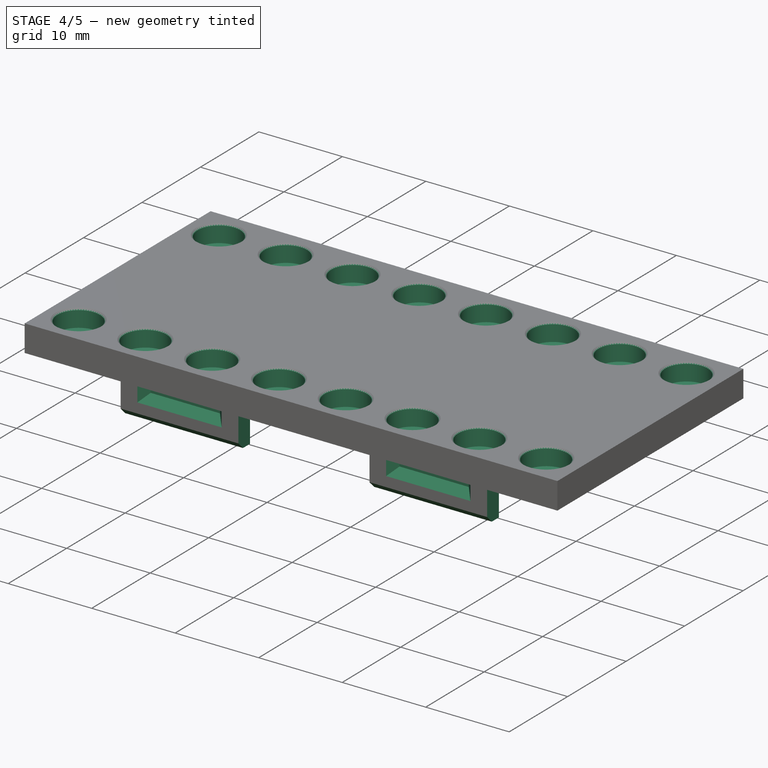
[diagram: stage 4 of 5 — iso view after this stage's code; geometry added in this stage tinted green]
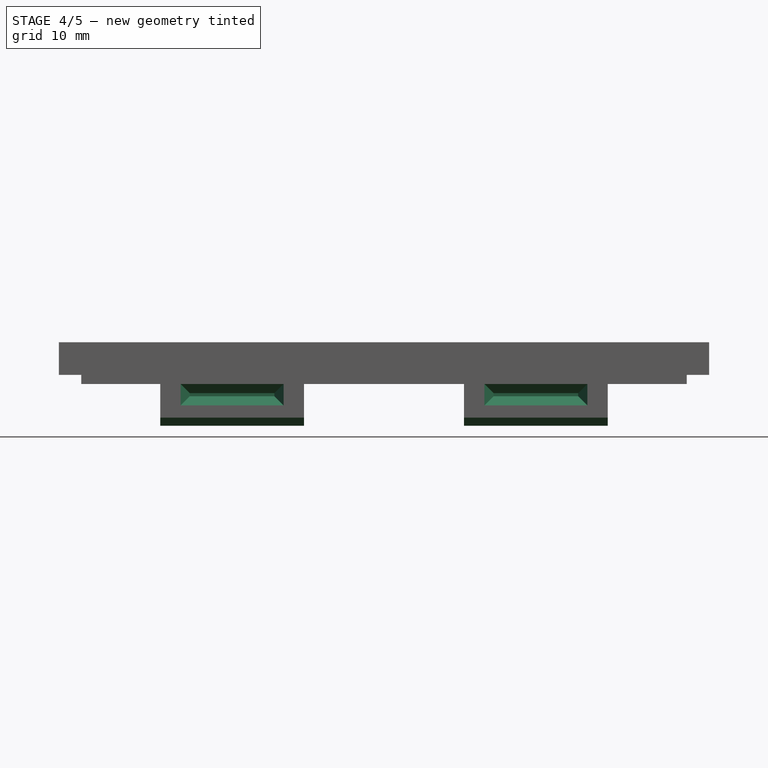
[diagram: stage 4 of 5 — front view after this stage's code; geometry added in this stage tinted green]
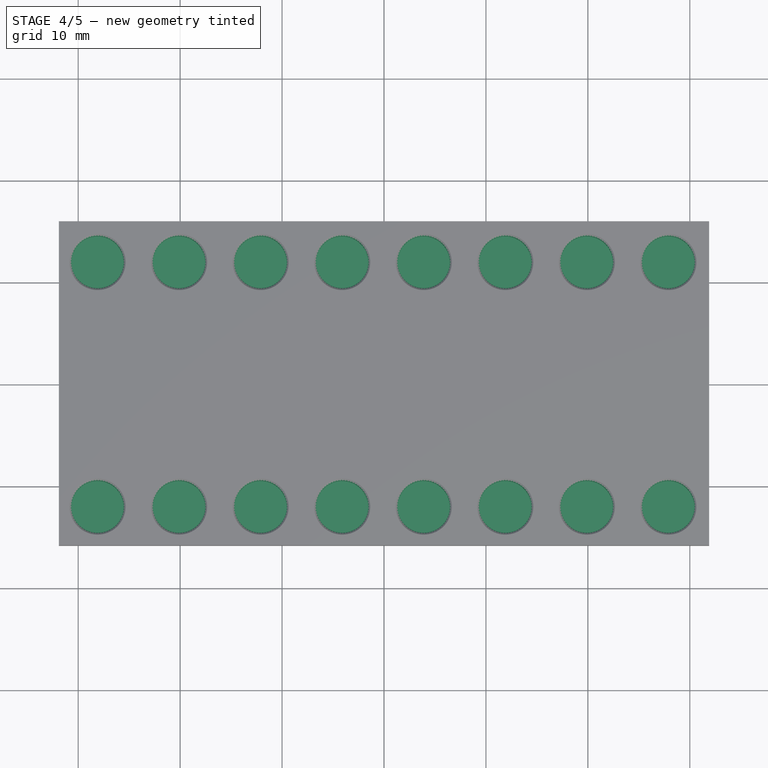
[diagram: stage 4 of 5 — top view after this stage's code; geometry added in this stage tinted green]
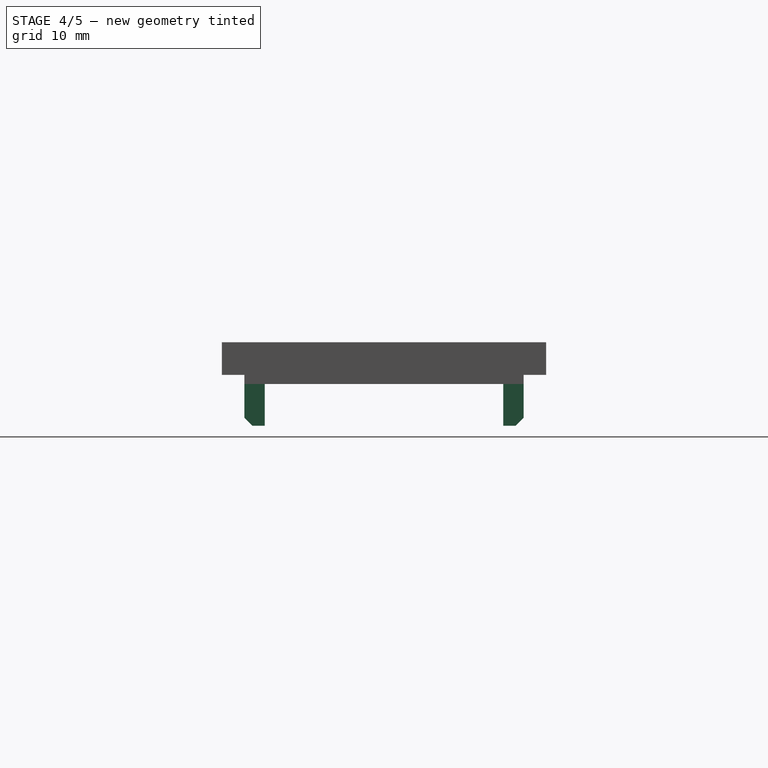
[diagram: stage 4 of 5 — right view after this stage's code; geometry added in this stage tinted green]
FEATURE [PartDesign::SubShapeBinder] Binder001  label="Binder_footprintSketch_snapfitTooth"
  BindCopyOnChange = 0
  BindMode = 0
  ClaimChildren = false
  Context = -> Body001 [Binder001.]
  Fuse = false
  MakeFace = true
  OffsetFill = false
  OffsetIntersection = false
  OffsetJoinType = 0
  OffsetOpenResult = false
  PartialLoad = false
  Placement = pos=(0,0,0.1) rot=(0,0,1;0rad)
  Refine = true
  Relative = true
  Support = -> [Body[Sketch002.]]
  _Version = 2
  expr: .Placement.Base.z = Spreadsheet.gap / 2
FEATURE [Sketcher::SketchObject] Sketch003  label="Sketch_snapfitGroove"
  ArcFitTolerance = 1e-06
  AttachmentSupport = -> [Pad002]
  ExternalGeometry = -> [Binder001]
  FullyConstrained = true
  MakeInternals = false
  MapMode = 5
  Placement = pos=(0,13.7,0) rot=(0,0.707107,0.707107;3.14159rad)
  expr: Constraints[16] = Spreadsheet.snapfitToothLenght + Spreadsheet.gap / 2
  expr: Constraints[17] = Spreadsheet.snapfitToothHeight + Spreadsheet.gap / 2
  sketch-geometry (8):
    g0: LineSegment [constr] StartX=9.9 StartY=34.05 StartZ=0 EndX=19.9 EndY=32.05 EndZ=0
    g1: LineSegment [constr] StartX=19.9 StartY=34.05 StartZ=0 EndX=9.9 EndY=32.05 EndZ=0
    g2: GeomPoint [constr] X=14.9 Y=33.05 Z=0
    g3: LineSegment StartX=9.85 StartY=34.1 StartZ=0 EndX=9.85 EndY=32 EndZ=0
    g4: LineSegment StartX=9.85 StartY=32 StartZ=0 EndX=19.95 EndY=32 EndZ=0
    g5: LineSegment StartX=19.95 StartY=32 StartZ=0 EndX=19.95 EndY=34.1 EndZ=0
    g6: LineSegment StartX=19.95 StartY=34.1 StartZ=0 EndX=9.85 EndY=34.1 EndZ=0
    g7: GeomPoint [constr] X=14.9 Y=33.05 Z=0
  constraints (18):
    c: Coincident(g0,g-4)
    c: Coincident(g0,g-6)
    c: Coincident(g1,g-6)
    c: Coincident(g1,g-5)
    c: PointOnObject(g2,g1)
    c: PointOnObject(g2,g0)
    c: Coincident(g3,g4)
    c: Coincident(g4,g5)
    c: Coincident(g5,g6)
    c: Coincident(g6,g3)
    c: Vertical(g3)
    c: Vertical(g5)
    c: Horizontal(g4)
    c: Horizontal(g6)
    c: Symmetric(g5,g3,g7)
    c: Coincident(g7,g2)
    c: DistanceX(g6,g6) = 10.1
    c: DistanceY(g3,g3) = 2.1
FEATURE [PartDesign::Pocket] Pocket  label="Pocket_snapfitGroove"
  BaseFeature = -> Pad002
  Direction = (0,-1,2e-16)
  Length = 1
  Length2 = 5
  Profile = -> Sketch003
  ReferenceAxis = -> Sketch003 [N_Axis]
  Refine = true
  Suppressed = false
  TaperAngle = -42
  Type = 0
  expr: Length = Spreadsheet.SnapfitToothDepth
FEATURE [PartDesign::Mirrored] Mirrored002
  MirrorPlane = -> YZ_Plane001
  Refine = true
  Suppressed = false
  TransformMode = 0
FEATURE [PartDesign::Mirrored] Mirrored003
  MirrorPlane = -> XZ_Plane001
  Refine = true
  Suppressed = false
  TransformMode = 0
FEATURE [PartDesign::MultiTransform] MultiTransform001  label="MultiTransform_snapfitGrooves"
  BaseFeature = -> Pocket
  Originals = -> [Pocket]
  Refine = true
  Suppressed = false
  TransformMode = 0
  Transformations = -> [Mirrored002,Mirrored003]
FEATURE [Sketcher::SketchObject] Sketch004  label="Sketch_lidWallCutOut"
  ArcFitTolerance = 1e-06
  AttachmentSupport = -> [MultiTransform001]
  ExternalGeometry = -> [MultiTransform001,Sketch001]
  FullyConstrained = true
  MakeInternals = false
  MapMode = 5
  Placement = pos=(0,13.7,0) rot=(0,0.707107,0.707107;3.14159rad)
  sketch-geometry (12):
    g0: LineSegment StartX=-29.7 StartY=34.1 StartZ=0 EndX=-29.7 EndY=30 EndZ=0
    g1: LineSegment StartX=-29.7 StartY=30 StartZ=0 EndX=-21.95 EndY=30 EndZ=0
    g2: LineSegment StartX=-21.95 StartY=30 StartZ=0 EndX=-21.95 EndY=34.1 EndZ=0
    g3: LineSegment StartX=-7.85 StartY=34.1 StartZ=0 EndX=-7.85 EndY=30 EndZ=0
    g4: LineSegment StartX=-7.85 StartY=30 StartZ=0 EndX=7.85 EndY=30 EndZ=0
    g5: LineSegment StartX=7.85 StartY=30 StartZ=0 EndX=7.85 EndY=34.1 EndZ=0
    g6: LineSegment StartX=7.85 StartY=34.1 StartZ=0 EndX=-7.85 EndY=34.1 EndZ=0
    g7: LineSegment StartX=21.95 StartY=34.1 StartZ=0 EndX=21.95 EndY=30 EndZ=0
    g8: LineSegment StartX=21.95 StartY=30 StartZ=0 EndX=29.7 EndY=30 EndZ=0
    g9: LineSegment StartX=29.7 StartY=30 StartZ=0 EndX=29.7 EndY=34.1 EndZ=0
    g10: LineSegment StartX=29.7 StartY=34.1 StartZ=0 EndX=21.95 EndY=34.1 EndZ=0
    g11: LineSegment StartX=-21.95 StartY=34.1 StartZ=0 EndX=-29.7 EndY=34.1 EndZ=0
  constraints (35):
    c: Coincident(g0,g1)
    c: Coincident(g1,g2)
    c: Vertical(g0)
    c: Vertical(g2)
    c: Horizontal(g1)
    c: Coincident(g3,g4)
    c: Coincident(g4,g5)
    c: Coincident(g5,g6)
    c: Coincident(g6,g3)
    c: Vertical(g3)
    c: Vertical(g5)
    c: Horizontal(g4)
    c: Horizontal(g6)
    c: Coincident(g7,g8)
    c: Coincident(g8,g9)
    c: Coincident(g10,g7)
    c: Vertical(g7)
    c: Vertical(g9)
    c: Horizontal(g8)
    c: Horizontal(g10)
    c: Horizontal(g2,g3)
    c: Horizontal(g3,g7)
    c: Horizontal(g0,g3)
    c: Coincident(g11,g2)
    c: Coincident(g11,g0)
    c: Horizontal(g11)
    c: Coincident(g9,g10)
    c: Horizontal(g4,g7)
    c: Vertical(g9,g-6)
    c: Coincident(g0,g-7)
    c: Horizontal(g-3,g2)
    c: DistanceX(g2,g-3) = 2
    c: DistanceX(g-3,g3) = 2
    c: DistanceX(g5,g-4) = 2
    c: DistanceX(g-4,g7) = 2
FEATURE [PartDesign::Pocket] Pocket001  label="Pocket_lidWallCutOut"
  BaseFeature = -> MultiTransform001
  Direction = (0,-1,2e-16)
  Length = 5
  Length2 = 5
  Profile = -> Sketch004
  ReferenceAxis = -> Sketch004 [N_Axis]
  Refine = true
  Suppressed = false
  Type = 1
FEATURE [PartDesign::Chamfer] Chamfer  label="Chamfer_snapfitGrooves"
  Angle = 45
  Base = -> Pocket001 [Edge27,Edge23,Edge46,Edge42]
  BaseFeature = -> Pocket001
  ChamferType = 0
  FlipDirection = false
  Refine = true
  Size = 0.8
  Size2 = 1
  SupportTransform = false
  Suppressed = false
  UseAllEdges = false
FEATURE [Sketcher::SketchObject] Sketch005  label="Sketch_legoHole1"
  ArcFitTolerance = 1e-06
  AttachmentSupport = -> [Chamfer]
  ExternalGeometry = -> [Chamfer]
  FullyConstrained = true
  MakeInternals = false
  MapMode = 5
  Placement = pos=(0,0,38.2) rot=(0,0,1;0rad)
  expr: Constraints[0] = Spreadsheet.studDiameter
  expr: Constraints[1] = Spreadsheet.studPlacement
  expr: Constraints[2] = Spreadsheet.studPlacement
  expr: Constraints[5] = Spreadsheet.horizontalSpacing
  sketch-geometry (2):
    g0: Circle CenterX=-28.1 CenterY=-12.1 CenterZ=0 NormalX=0 NormalY=0 NormalZ=1 AngleXU=0 Radius=2.4
    g1: Circle [constr] CenterX=-28.1 CenterY=-4.1 CenterZ=0 NormalX=0 NormalY=0 NormalZ=1 AngleXU=0 Radius=2.4
  constraints (6):
    c: Diameter(g0) = 4.8
    c: DistanceX(g-4,g0) = 3.8
    c: DistanceY(g-4,g0) = 3.8
    c: Vertical(g1,g0)
    c: Equal(g1,g0)
    c: DistanceY(g0,g1) = 8
FEATURE [PartDesign::Hole] Hole  label="Hole_legoHole1"
  BaseFeature = -> Chamfer
  CustomThreadClearance = 0
  Depth = 2.1
  DepthType = 0
  Diameter = 5.1
  DrillForDepth = false
  DrillPoint = 0
  DrillPointAngle = 135
  HoleCutCountersinkAngle = 90
  HoleCutCustomValues = false
  HoleCutDepth = 0.4
  HoleCutDiameter = 5.5
  HoleCutType = 2
  ModelThread = false
  Profile = -> Sketch005
  Refine = true
  Suppressed = false
  Tapered = false
  TaperedAngle = 90
  ThreadClass = 0
  ThreadDepth = 2.1
  ThreadDepthType = 0
  ThreadDirection = 0
  ThreadFit = 0
  ThreadSize = 0
  ThreadType = 0
  Threaded = false
  UseCustomThreadClearance = false
  expr: Depth = Spreadsheet.studHeight + Spreadsheet.ClearanceLego
  expr: Diameter = Spreadsheet.studDiameter + Spreadsheet.ClearanceLego
  expr: HoleCutDiameter = Spreadsheet.studDiameter + Spreadsheet.ClearanceLego + 0.4
FEATURE [PartDesign::LinearPattern] LinearPattern
  Direction = -> Sketch005 [H_Axis]
  Length = 56
  Mode = 0
  Occurrences = 8
  Offset = 8
  Refine = true
  Suppressed = false
  TransformMode = 0
  expr: Length = Spreadsheet.horizontalSpacing * (Spreadsheet.lenghtUnits - 1)
  expr: Occurrences = Spreadsheet.lenghtUnits
FEATURE [PartDesign::LinearPattern] LinearPattern001
  Direction = -> Y_Axis001
  Length = 24
  Mode = 0
  Occurrences = 2
  Offset = 24
  Refine = true
  Suppressed = false
  TransformMode = 0
  expr: Length = Spreadsheet.horizontalSpacing * 3
FEATURE [PartDesign::MultiTransform] MultiTransform002  label="MultiTransform_legoHoles"
  BaseFeature = -> Hole
  Originals = -> [Hole]
  Refine = true
  Suppressed = false
  TransformMode = 0
  Transformations = -> [LinearPattern,LinearPattern001]
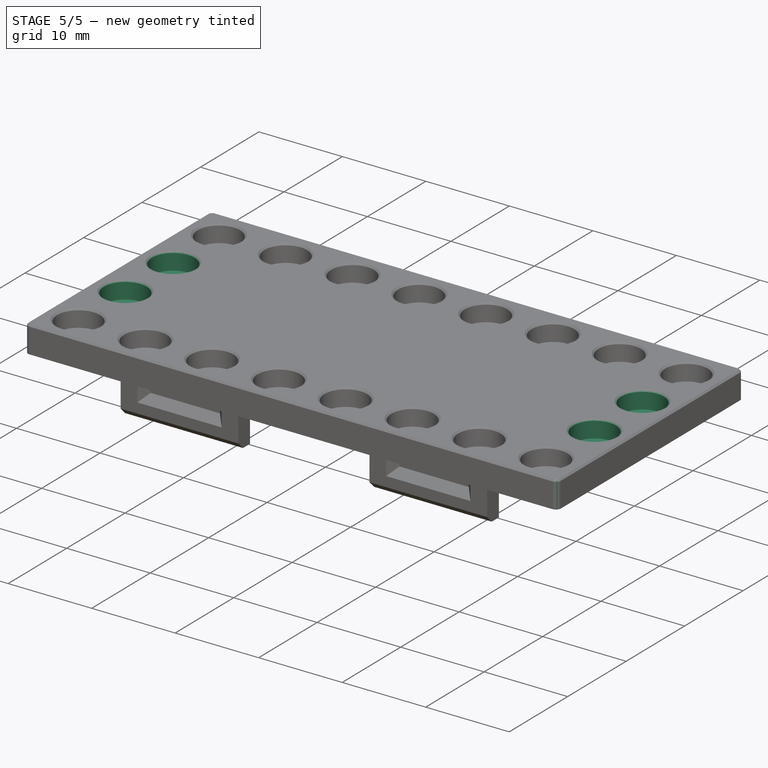
[diagram: stage 5 of 5 — iso view after this stage's code; geometry added in this stage tinted green]
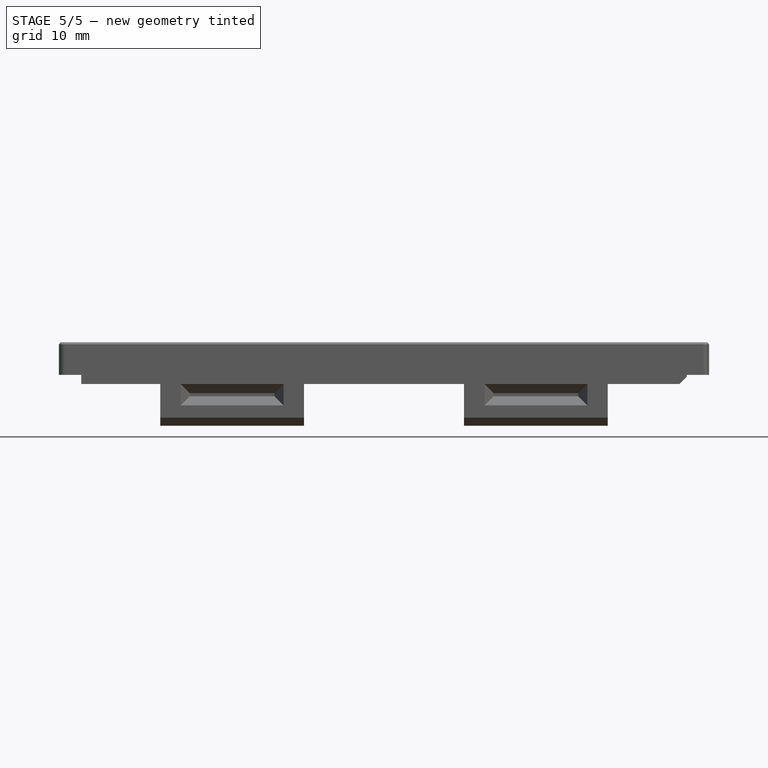
[diagram: stage 5 of 5 — front view after this stage's code; geometry added in this stage tinted green]
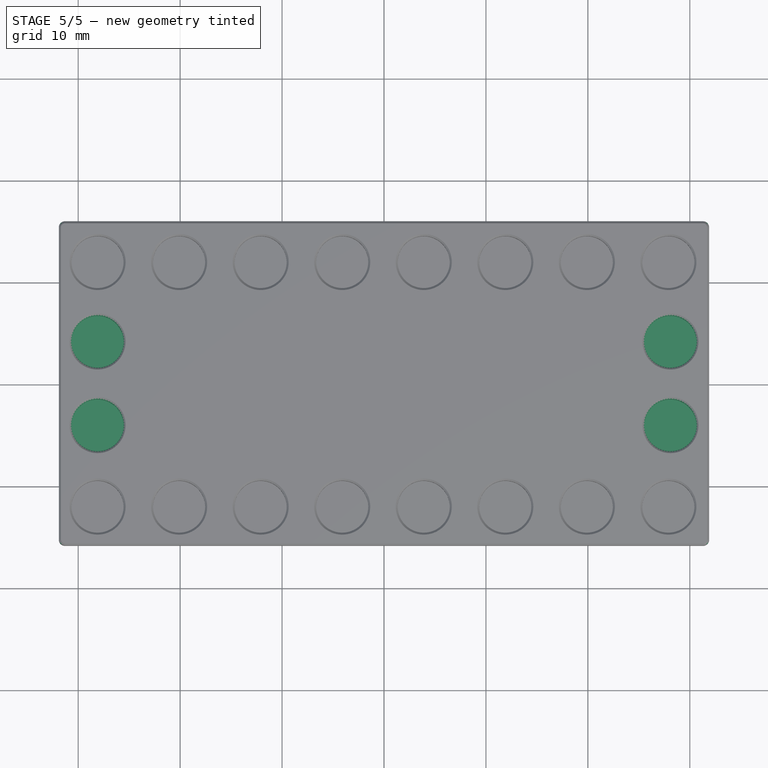
[diagram: stage 5 of 5 — top view after this stage's code; geometry added in this stage tinted green]
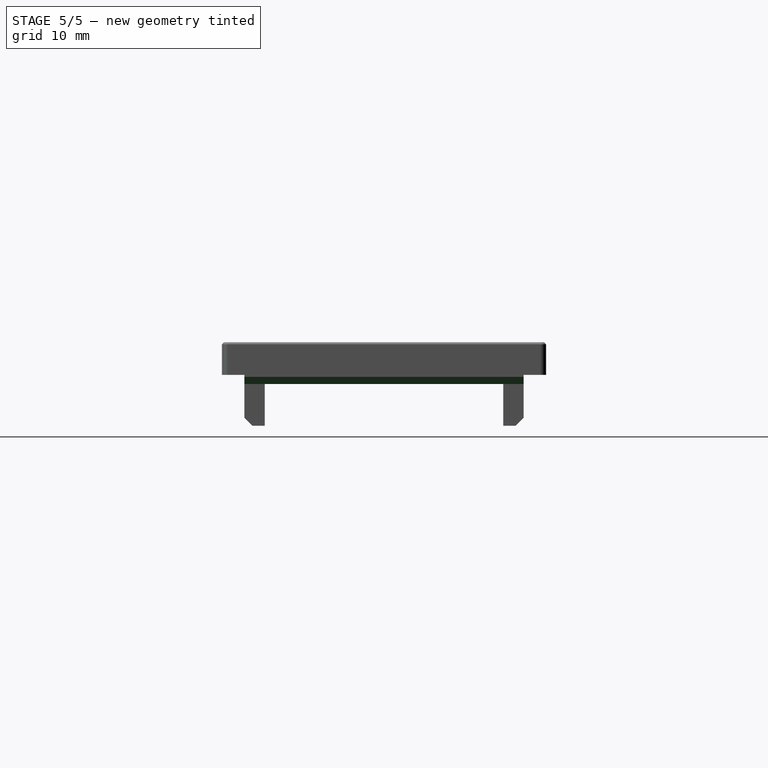
[diagram: stage 5 of 5 — right view after this stage's code; geometry added in this stage tinted green]
FEATURE [Sketcher::SketchObject] Sketch006
  ArcFitTolerance = 1e-06
  AttachmentSupport = -> [MultiTransform002]
  ExternalGeometry = -> [Sketch005]
  FullyConstrained = true
  MakeInternals = false
  MapMode = 5
  Placement = pos=(0,0,38.2) rot=(0,0,1;0rad)
  expr: Constraints[2] = Spreadsheet.horizontalSpacing
  sketch-geometry (1):
    g0: Circle CenterX=-28.1 CenterY=-4.1 CenterZ=0 NormalX=0 NormalY=0 NormalZ=1 AngleXU=0 Radius=2.4
  constraints (3):
    c: Vertical(g0,g-3)
    c: Equal(g0,g-3)
    c: DistanceY(g-3,g0) = 8
FEATURE [PartDesign::Hole] Hole001  label="Hole_legoHole2"
  BaseFeature = -> MultiTransform002
  CustomThreadClearance = 0
  Depth = 2.1
  DepthType = 0
  Diameter = 5.1
  DrillForDepth = false
  DrillPoint = 0
  DrillPointAngle = 135
  HoleCutCountersinkAngle = 90
  HoleCutCustomValues = false
  HoleCutDepth = 0
  HoleCutDiameter = 5.5
  HoleCutType = 2
  ModelThread = false
  Profile = -> Sketch006
  Refine = true
  Suppressed = false
  Tapered = false
  TaperedAngle = 90
  ThreadClass = 0
  ThreadDepth = 2.1
  ThreadDepthType = 0
  ThreadDirection = 0
  ThreadFit = 0
  ThreadSize = 0
  ThreadType = 0
  Threaded = false
  UseCustomThreadClearance = false
  expr: Depth = Spreadsheet.studHeight + Spreadsheet.ClearanceLego
  expr: Diameter = Spreadsheet.studDiameter + Spreadsheet.ClearanceLego
  expr: HoleCutDiameter = Spreadsheet.studDiameter + Spreadsheet.ClearanceLego + 0.4
FEATURE [PartDesign::Mirrored] Mirrored004
  MirrorPlane = -> XZ_Plane001
  Refine = true
  Suppressed = false
  TransformMode = 0
FEATURE [PartDesign::Mirrored] Mirrored005
  MirrorPlane = -> YZ_Plane001
  Refine = true
  Suppressed = false
  TransformMode = 0
FEATURE [PartDesign::MultiTransform] MultiTransform003
  BaseFeature = -> Hole001
  Originals = -> [Hole001]
  Refine = true
  Suppressed = false
  TransformMode = 0
  Transformations = -> [Mirrored004,Mirrored005]
FEATURE [PartDesign::Fillet] Fillet001  label="Fillet_lidCorners"
  Base = -> MultiTransform003 [Edge110,Edge111,Edge115,Edge113]
  BaseFeature = -> MultiTransform003
  Radius = 0.6
  Refine = true
  SupportTransform = false
  Suppressed = false
  UseAllEdges = false
  expr: Radius = Spreadsheet.cornerFillet
FEATURE [PartDesign::Chamfer] Chamfer001  label="Chamfer_lidBottom"
  Angle = 45
  Base = -> Fillet001 [Edge22,Edge28,Edge20,Edge13]
  BaseFeature = -> Fillet001
  ChamferType = 0
  FlipDirection = false
  Refine = true
  Size = 0.2
  Size2 = 1
  SupportTransform = false
  Suppressed = false
  UseAllEdges = false
  expr: Size = Spreadsheet.chamferEdges
FEATURE [PartDesign::Chamfer] Chamfer004  label="Chamfer_lidWireHole"
  Angle = 45
  Base = -> Chamfer001 [Edge62]
  BaseFeature = -> Chamfer001
  ChamferType = 0
  FlipDirection = false
  Refine = true
  Size = 0.7
  Size2 = 1
  SupportTransform = false
  Suppressed = false
  UseAllEdges = false
FEATURE [Part::MultiFuse] Fusion  label="Fusion_lid_txtWire"
  Refine = true
  Shapes = -> [Body001,Extrude]
FEATURE [App::TextDocument] Text_document  label="Text document_ReadMe"
  Text = Lego Power Function (PF) Motor speed controller\n\nThis enclosure contains a HW-70 PWM Motor speed controller and a On-Off-On DPDT Rocker switch. However, this model includes the speed controller HW-687 for illustration purposes\n\nThe dimensions are defined in Spreadsheet - Enter in the LegoAdapter column the LegoUnits dimensions\n\nTip; The scale lines can be filled in with a black marker and wiped clean with alcohol\n\nSee https://share.evernote.com/note/599744f1-4d69-338f-4eda-bfa48ea56b7e for details
note: 1 file-system path scrubbed to <path> (originals preserved in the JSON sidecar)
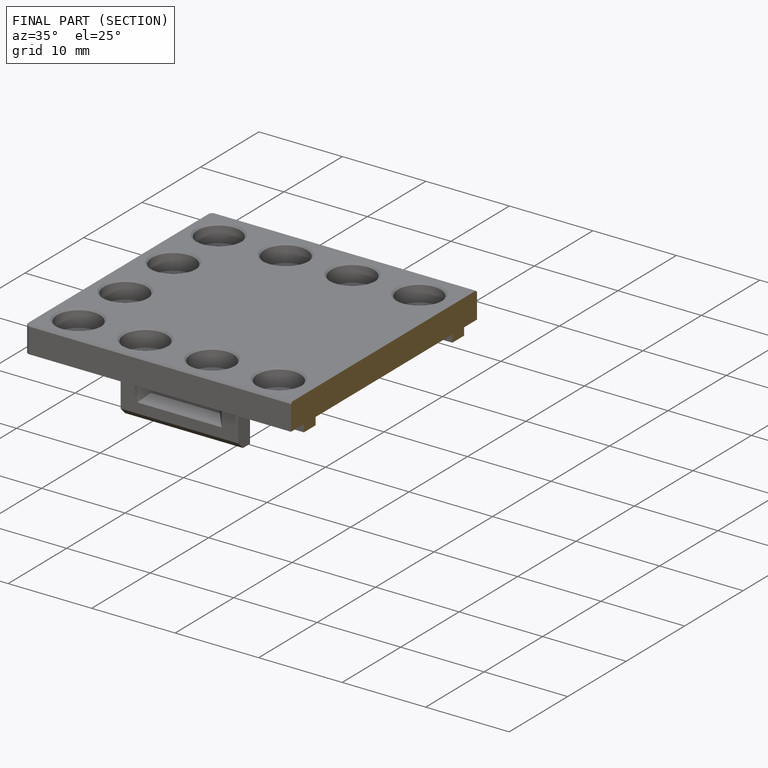
[diagram: finished part — half-section view (interior)]
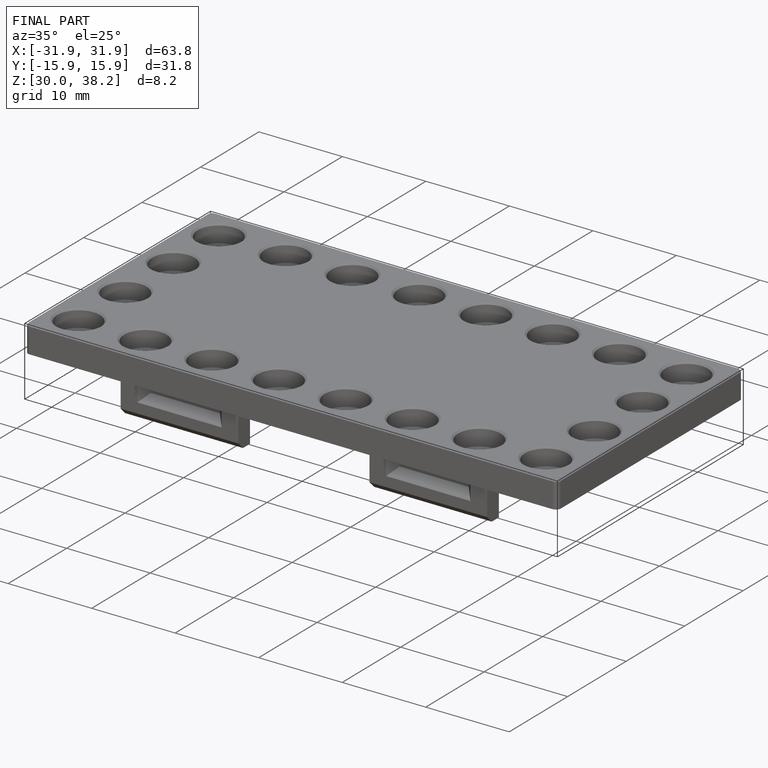
[diagram: finished part — iso view with bounding-box wireframe]
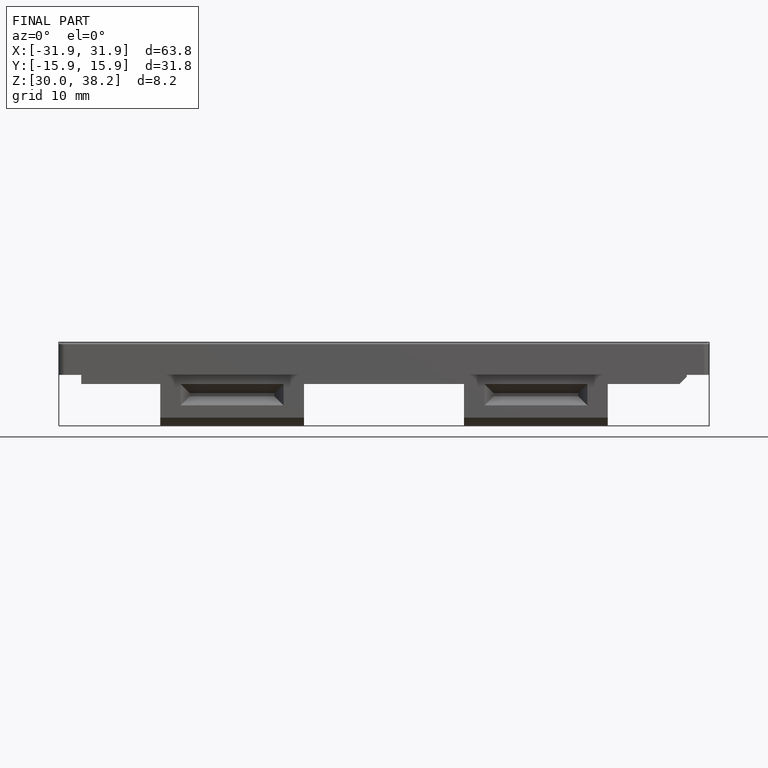
[diagram: finished part — front view with bounding-box wireframe]
